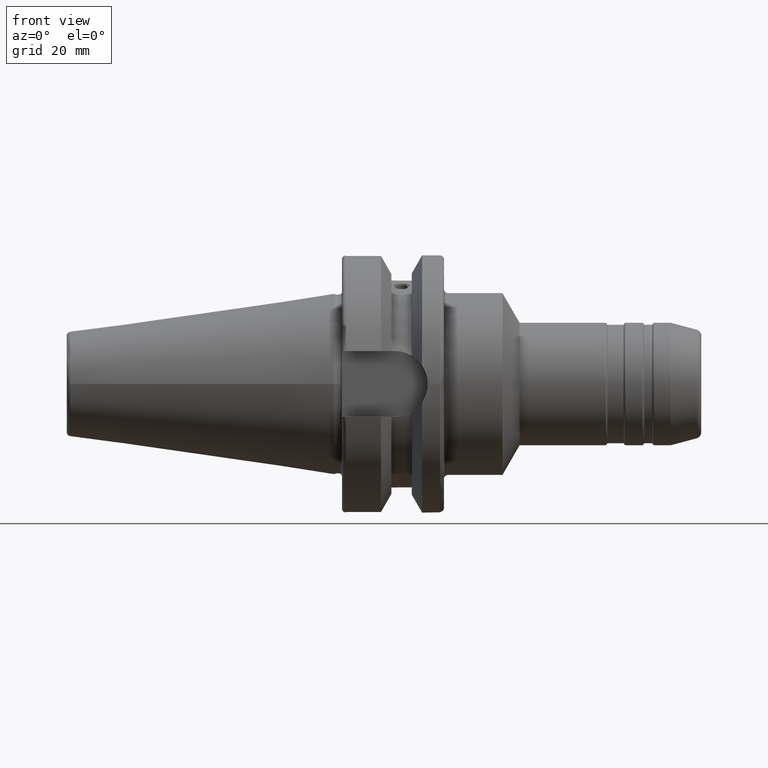
[diagram: clean part render]
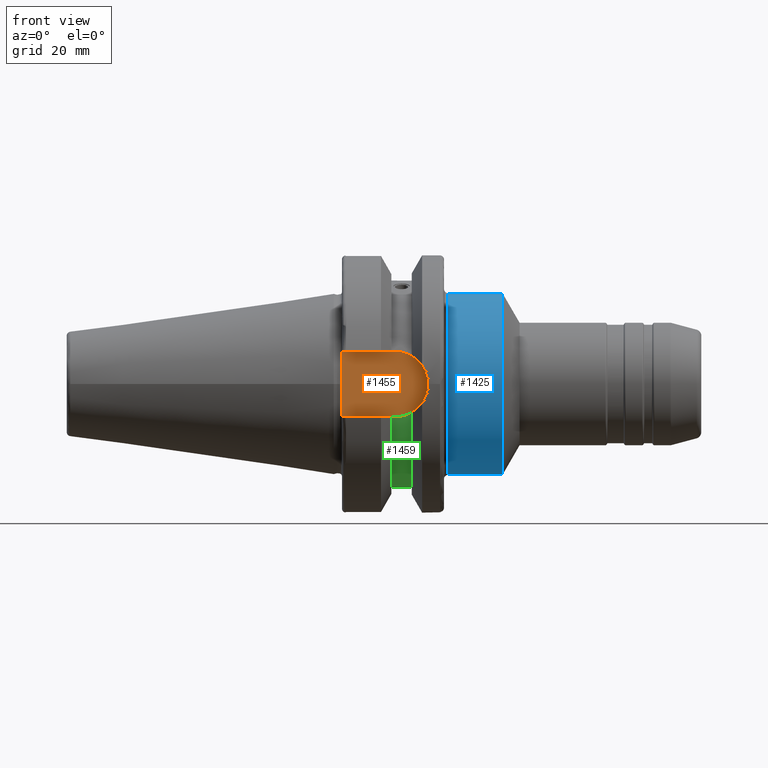
[diagram: same view with three faces highlighted in distinct colors, each labeled with its STEP entity id]
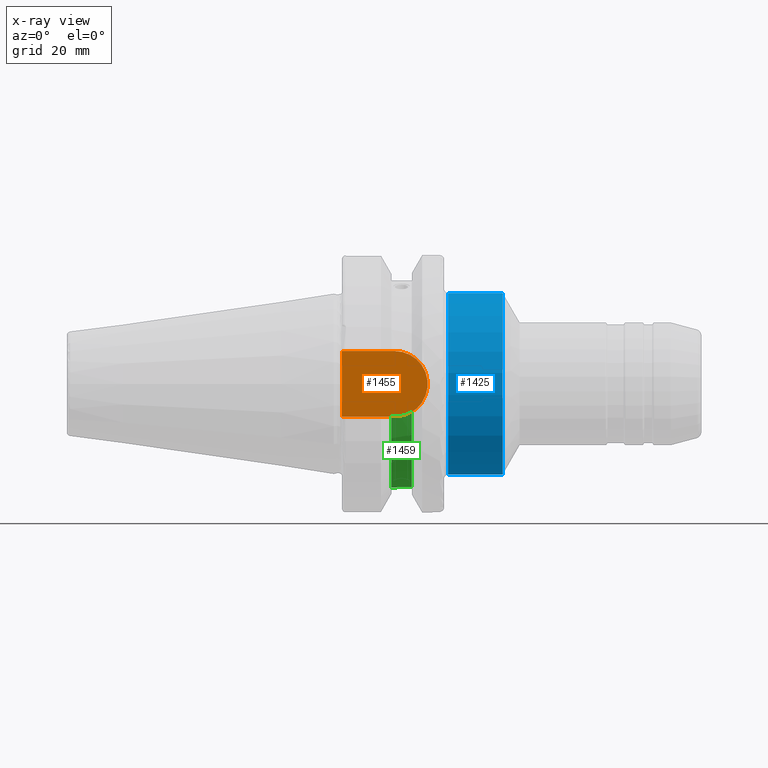
[diagram: x-ray of the same camera — body ghosted, the three highlighted faces saturated]
A machine part, front view with three faces highlighted in distinct colors.
The next image is the same camera in x-ray (body ghosted, the three faces saturated) — at least one of them is partly hidden behind the body in this view.
Their STEP definitions:

[orange] entity #1455 — the highlighted planar face has unit normal (0, 1, 0).
#47=PLANE('',#1647);
#191=FACE_OUTER_BOUND('',#290,.T.);
#290=EDGE_LOOP('',(#1195,#1196,#1197,#1198));
#374=LINE('',#2677,#447);
#376=LINE('',#2682,#449);
#380=LINE('',#2704,#453);
#447=VECTOR('',#2033,10.);
#449=VECTOR('',#2037,10.);
#453=VECTOR('',#2043,10.);
#536=CIRCLE('',#1644,8.05);
#658=VERTEX_POINT('',#2648);
#659=VERTEX_POINT('',#2650);
#665=VERTEX_POINT('',#2675);
#667=VERTEX_POINT('',#2681);
#843=EDGE_CURVE('',#658,#659,#536,.T.);
#851=EDGE_CURVE('',#665,#658,#374,.T.);
#853=EDGE_CURVE('',#659,#667,#376,.T.);
#859=EDGE_CURVE('',#667,#665,#380,.T.);
#1195=ORIENTED_EDGE('',*,*,#853,.F.);
#1196=ORIENTED_EDGE('',*,*,#843,.F.);
#1197=ORIENTED_EDGE('',*,*,#851,.F.);
#1198=ORIENTED_EDGE('',*,*,#859,.F.);
#1455=ADVANCED_FACE('',(#191),#47,.F.);
#1644=AXIS2_PLACEMENT_3D('',#2651,#2024,#2025);
#1647=AXIS2_PLACEMENT_3D('',#2703,#2041,#2042);
#2024=DIRECTION('center_axis',(0.,1.,0.));
#2025=DIRECTION('ref_axis',(0.,0.,1.));
#2033=DIRECTION('',(1.,0.,8.57315076930623E-17));
#2037=DIRECTION('',(-1.,0.,-8.57315076930623E-17));
#2041=DIRECTION('center_axis',(0.,1.,0.));
#2042=DIRECTION('ref_axis',(0.,0.,1.));
#2043=DIRECTION('',(0.,0.,1.));
#2648=CARTESIAN_POINT('',(14.95,-22.6,8.05));
#2650=CARTESIAN_POINT('',(14.95,-22.6,-8.05));
#2651=CARTESIAN_POINT('Origin',(14.95,-22.6,0.));
#2675=CARTESIAN_POINT('',(1.99999999999999,-22.6,8.05));
#2677=CARTESIAN_POINT('',(1.99999999999999,-22.6,8.05));
#2681=CARTESIAN_POINT('',(1.99999999999999,-22.6,-8.05));
#2682=CARTESIAN_POINT('',(14.95,-22.6,-8.05));
#2703=CARTESIAN_POINT('Origin',(12.5,-22.6,0.));
#2704=CARTESIAN_POINT('',(1.99999999999999,-22.6,0.));

[blue] entity #1425 — the highlighted cylindrical surface (bore or boss wall) has radius 22.25 mm, axis along (1, 0, 0).
#161=FACE_OUTER_BOUND('',#253,.T.);
#253=EDGE_LOOP('',(#1045,#1046,#1047,#1048,#1049));
#346=LINE('',#2412,#419);
#419=VECTOR('',#1879,22.25);
#515=CIRCLE('',#1577,22.25);
#516=CIRCLE('',#1578,22.25);
#519=CIRCLE('',#1582,22.25);
#609=VERTEX_POINT('',#2402);
#610=VERTEX_POINT('',#2403);
#612=VERTEX_POINT('',#2410);
#771=EDGE_CURVE('',#609,#610,#515,.T.);
#772=EDGE_CURVE('',#610,#609,#516,.T.);
#775=EDGE_CURVE('',#612,#612,#519,.T.);
#776=EDGE_CURVE('',#612,#610,#346,.T.);
#1045=ORIENTED_EDGE('',*,*,#775,.F.);
#1046=ORIENTED_EDGE('',*,*,#776,.T.);
#1047=ORIENTED_EDGE('',*,*,#771,.F.);
#1048=ORIENTED_EDGE('',*,*,#772,.F.);
#1049=ORIENTED_EDGE('',*,*,#776,.F.);
#1372=CYLINDRICAL_SURFACE('',#1581,22.25);
#1425=ADVANCED_FACE('',(#161),#1372,.T.);
#1577=AXIS2_PLACEMENT_3D('',#2404,#1867,#1868);
#1578=AXIS2_PLACEMENT_3D('',#2405,#1869,#1870);
#1581=AXIS2_PLACEMENT_3D('',#2409,#1875,#1876);
#1582=AXIS2_PLACEMENT_3D('',#2411,#1877,#1878);
#1867=DIRECTION('center_axis',(-1.,0.,0.));
#1868=DIRECTION('ref_axis',(0.,-1.22464679914735E-16,1.));
#1869=DIRECTION('center_axis',(-1.,0.,0.));
#1870=DIRECTION('ref_axis',(0.,-1.22464679914735E-16,1.));
#1875=DIRECTION('center_axis',(1.,0.,0.));
#1876=DIRECTION('ref_axis',(0.,0.,-1.));
#1877=DIRECTION('center_axis',(1.,0.,0.));
#1878=DIRECTION('ref_axis',(0.,0.,-1.));
#1879=DIRECTION('',(-1.,0.,0.));
#2402=CARTESIAN_POINT('',(28.,0.,-22.25));
#2403=CARTESIAN_POINT('',(28.,-2.72483912810286E-15,22.25));
#2404=CARTESIAN_POINT('Origin',(28.,0.,0.));
#2405=CARTESIAN_POINT('Origin',(28.,0.,0.));
#2409=CARTESIAN_POINT('Origin',(34.1571052741876,0.,0.));
#2410=CARTESIAN_POINT('',(41.3142105483752,-2.72483912810286E-15,22.25));
#2411=CARTESIAN_POINT('Origin',(41.3142105483752,0.,0.));
#2412=CARTESIAN_POINT('',(34.1571052741876,-2.72483912810286E-15,22.25));

[green] entity #1459 — the highlighted cylindrical surface (partial cylindrical patch) has radius 25.5 mm, axis along (1, 0, 0).
#84=FACE_BOUND('',#295,.T.);
#99=B_SPLINE_CURVE_WITH_KNOTS('',3,(#2542,#2543,#2544,#2545,#2546,#2547,
#2548,#2549,#2550,#2551,#2552,#2553,#2554,#2555,#2556,#2557,#2558,#2559,
#2560,#2561,#2562,#2563,#2564,#2565,#2566,#2567),.UNSPECIFIED.,.F.,.F.,
(4,2,2,2,2,2,2,2,2,2,2,2,4),(0.,0.0753706034311402,0.15074120686228,0.226111713565585,
0.301482220268889,0.376852726972193,0.452223233675497,0.527593837106637,
0.602964440537777,0.678335043968917,0.753705647400058,0.829076154103362,
0.904446660806666),.UNSPECIFIED.);
#100=B_SPLINE_CURVE_WITH_KNOTS('',3,(#2568,#2569,#2570,#2571,#2572,#2573,
#2574,#2575,#2576,#2577),.UNSPECIFIED.,.F.,.F.,(4,2,2,2,4),(0.904446660806666,
0.97981716750997,1.05518767421327,1.13055827764441,1.20592888107555),
 .UNSPECIFIED.);
#101=B_SPLINE_CURVE_WITH_KNOTS('',3,(#2603,#2604,#2605,#2606,#2607,#2608),
 .UNSPECIFIED.,.F.,.F.,(4,2,4),(2.02525951614585,2.13846497015446,2.44402436414645),
 .UNSPECIFIED.);
#111=B_SPLINE_CURVE_WITH_KNOTS('',3,(#2743,#2744,#2745,#2746,#2747,#2748),
 .UNSPECIFIED.,.F.,.F.,(4,2,4),(2.44402436414645,2.74958375813844,2.86278921214705),
 .UNSPECIFIED.);
#195=FACE_OUTER_BOUND('',#294,.T.);
#294=EDGE_LOOP('',(#1216,#1217,#1218,#1219,#1220,#1221));
#295=EDGE_LOOP('',(#1222,#1223));
#375=LINE('',#2680,#448);
#383=LINE('',#2742,#456);
#448=VECTOR('',#2036,10.);
#456=VECTOR('',#2068,10.);
#542=CIRCLE('',#1656,25.5);
#543=CIRCLE('',#1658,25.5);
#641=VERTEX_POINT('',#2539);
#642=VERTEX_POINT('',#2541);
#649=VERTEX_POINT('',#2601);
#650=VERTEX_POINT('',#2602);
#666=VERTEX_POINT('',#2679);
#677=VERTEX_POINT('',#2735);
#678=VERTEX_POINT('',#2739);
#679=VERTEX_POINT('',#2741);
#822=EDGE_CURVE('',#642,#641,#99,.T.);
#823=EDGE_CURVE('',#641,#642,#100,.T.);
#834=EDGE_CURVE('',#649,#650,#101,.T.);
#852=EDGE_CURVE('',#650,#666,#375,.T.);
#868=EDGE_CURVE('',#649,#677,#542,.T.);
#870=EDGE_CURVE('',#666,#678,#543,.T.);
#871=EDGE_CURVE('',#678,#679,#383,.T.);
#872=EDGE_CURVE('',#679,#677,#111,.T.);
#1216=ORIENTED_EDGE('',*,*,#834,.T.);
#1217=ORIENTED_EDGE('',*,*,#852,.T.);
#1218=ORIENTED_EDGE('',*,*,#870,.T.);
#1219=ORIENTED_EDGE('',*,*,#871,.T.);
#1220=ORIENTED_EDGE('',*,*,#872,.T.);
#1221=ORIENTED_EDGE('',*,*,#868,.F.);
#1222=ORIENTED_EDGE('',*,*,#822,.T.);
#1223=ORIENTED_EDGE('',*,*,#823,.T.);
#1390=CYLINDRICAL_SURFACE('',#1657,25.5);
#1459=ADVANCED_FACE('',(#195,#84),#1390,.T.);
#1656=AXIS2_PLACEMENT_3D('',#2736,#2061,#2062);
#1657=AXIS2_PLACEMENT_3D('',#2738,#2064,#2065);
#1658=AXIS2_PLACEMENT_3D('',#2740,#2066,#2067);
#2036=DIRECTION('',(-1.,0.,0.));
#2061=DIRECTION('center_axis',(1.,0.,0.));
#2062=DIRECTION('ref_axis',(0.,0.,-1.));
#2064=DIRECTION('center_axis',(1.,0.,0.));
#2065=DIRECTION('ref_axis',(0.,1.,0.));
#2066=DIRECTION('center_axis',(1.,0.,0.));
#2067=DIRECTION('ref_axis',(0.,0.,-1.));
#2068=DIRECTION('',(1.,0.,0.));
#2539=CARTESIAN_POINT('',(18.6,8.72151365480455,-23.9621618300407));
#2541=CARTESIAN_POINT('',(16.6,10.5740324061887,-23.2043064682587));
#2542=CARTESIAN_POINT('Ctrl Pts',(16.6,10.5740324061887,-23.2043064682587));
#2543=CARTESIAN_POINT('Ctrl Pts',(16.3487646552295,10.5740324061887,-23.2043064682587));
#2544=CARTESIAN_POINT('Ctrl Pts',(16.0808539398032,10.5282360748462,-23.2253464640325));
#2545=CARTESIAN_POINT('Ctrl Pts',(15.5881259002915,10.341480204317,-23.3091025219309));
#2546=CARTESIAN_POINT('Ctrl Pts',(15.3632997889944,10.2004525041704,-23.3716147691749));
#2547=CARTESIAN_POINT('Ctrl Pts',(15.0082733140735,9.87358134491179,-23.5115716095889));
#2548=CARTESIAN_POINT('Ctrl Pts',(14.8543700008966,9.66590292532593,-23.5983277097944));
#2549=CARTESIAN_POINT('Ctrl Pts',(14.6502304925719,9.20795105223416,-23.78075666331));
#2550=CARTESIAN_POINT('Ctrl Pts',(14.6,8.95759735138452,-23.87623439169));
#2551=CARTESIAN_POINT('Ctrl Pts',(14.6,8.48542995822459,-24.0480892683913));
#2552=CARTESIAN_POINT('Ctrl Pts',(14.6502304925719,8.23227599607073,-24.1358733420695));
#2553=CARTESIAN_POINT('Ctrl Pts',(14.8543700008966,7.76420143750494,-24.290490445821));
#2554=CARTESIAN_POINT('Ctrl Pts',(15.0082733140735,7.54934479194869,-24.357524532261));
#2555=CARTESIAN_POINT('Ctrl Pts',(15.3632997889944,7.20898443387373,-24.4604201035206));
#2556=CARTESIAN_POINT('Ctrl Pts',(15.5881259002915,7.0607688498685,-24.5031838021693));
#2557=CARTESIAN_POINT('Ctrl Pts',(16.0808539398032,6.86386819677648,-24.5590672990511));
#2558=CARTESIAN_POINT('Ctrl Pts',(16.3487646552295,6.81526192304506,-24.5723870415614));
#2559=CARTESIAN_POINT('Ctrl Pts',(16.8512353447705,6.81526192304506,-24.5723870415614));
#2560=CARTESIAN_POINT('Ctrl Pts',(17.1191460601968,6.86386819677648,-24.5590672990511));
#2561=CARTESIAN_POINT('Ctrl Pts',(17.6118740997085,7.0607688498685,-24.5031838021693));
#2562=CARTESIAN_POINT('Ctrl Pts',(17.8367002110056,7.20898443387373,-24.4604201035206));
#2563=CARTESIAN_POINT('Ctrl Pts',(18.1917266859265,7.54934479194869,-24.357524532261));
#2564=CARTESIAN_POINT('Ctrl Pts',(18.3456299991034,7.76420143750494,-24.290490445821));
#2565=CARTESIAN_POINT('Ctrl Pts',(18.5497695074281,8.23227599607073,-24.1358733420695));
#2566=CARTESIAN_POINT('Ctrl Pts',(18.6,8.48542995822459,-24.0480892683913));
#2567=CARTESIAN_POINT('Ctrl Pts',(18.6,8.72151365480455,-23.9621618300407));
#2568=CARTESIAN_POINT('Ctrl Pts',(18.6,8.72151365480455,-23.9621618300407));
#2569=CARTESIAN_POINT('Ctrl Pts',(18.6,8.95759735138452,-23.87623439169));
#2570=CARTESIAN_POINT('Ctrl Pts',(18.5497695074281,9.20795105223416,-23.78075666331));
#2571=CARTESIAN_POINT('Ctrl Pts',(18.3456299991034,9.66590292532593,-23.5983277097944));
#2572=CARTESIAN_POINT('Ctrl Pts',(18.1917266859265,9.87358134491179,-23.5115716095889));
#2573=CARTESIAN_POINT('Ctrl Pts',(17.8367002110056,10.2004525041704,-23.3716147691749));
#2574=CARTESIAN_POINT('Ctrl Pts',(17.6118740997085,10.341480204317,-23.3091025219309));
#2575=CARTESIAN_POINT('Ctrl Pts',(17.1191460601968,10.5282360748462,-23.2253464640325));
#2576=CARTESIAN_POINT('Ctrl Pts',(16.8512353447705,10.5740324061887,-23.2043064682587));
#2577=CARTESIAN_POINT('Ctrl Pts',(16.6,10.5740324061887,-23.2043064682587));
#2601=CARTESIAN_POINT('',(19.1,-24.5493380766162,-6.89782574439221));
#2602=CARTESIAN_POINT('',(14.95,-24.1960224003864,-8.05));
#2603=CARTESIAN_POINT('Ctrl Pts',(19.1,-24.5493380766162,-6.89782574439221));
#2604=CARTESIAN_POINT('Ctrl Pts',(18.7625417379862,-24.492291659194,-7.10085374759973));
#2605=CARTESIAN_POINT('Ctrl Pts',(18.4072379028184,-24.4390565244262,-7.28065599998141));
#2606=CARTESIAN_POINT('Ctrl Pts',(17.0497516664971,-24.2670783971366,-7.84501312719341));
#2607=CARTESIAN_POINT('Ctrl Pts',(15.9685313133066,-24.1960224003864,-8.05));
#2608=CARTESIAN_POINT('Ctrl Pts',(14.95,-24.1960224003864,-8.05));
#2679=CARTESIAN_POINT('',(14.1,-24.1960224003864,-8.05));
#2680=CARTESIAN_POINT('',(16.6,-24.1960224003864,-8.05));
#2735=CARTESIAN_POINT('',(19.1,24.5493380766162,-6.89782574439221));
#2736=CARTESIAN_POINT('Origin',(19.1,0.,0.));
#2738=CARTESIAN_POINT('Origin',(16.6,0.,0.));
#2739=CARTESIAN_POINT('',(14.1,24.1960224003864,-8.05));
#2740=CARTESIAN_POINT('Origin',(14.1,0.,0.));
#2741=CARTESIAN_POINT('',(14.95,24.1960224003864,-8.05));
#2742=CARTESIAN_POINT('',(16.6,24.1960224003864,-8.05));
#2743=CARTESIAN_POINT('Ctrl Pts',(14.95,24.1960224003864,-8.05));
#2744=CARTESIAN_POINT('Ctrl Pts',(15.9685313133066,24.1960224003864,-8.05));
#2745=CARTESIAN_POINT('Ctrl Pts',(17.0497516664971,24.2670783971366,-7.84501312719341));
#2746=CARTESIAN_POINT('Ctrl Pts',(18.4072379028184,24.4390565244262,-7.28065599998141));
#2747=CARTESIAN_POINT('Ctrl Pts',(18.7625417379862,24.492291659194,-7.10085374759973));
#2748=CARTESIAN_POINT('Ctrl Pts',(19.1,24.5493380766162,-6.89782574439221));